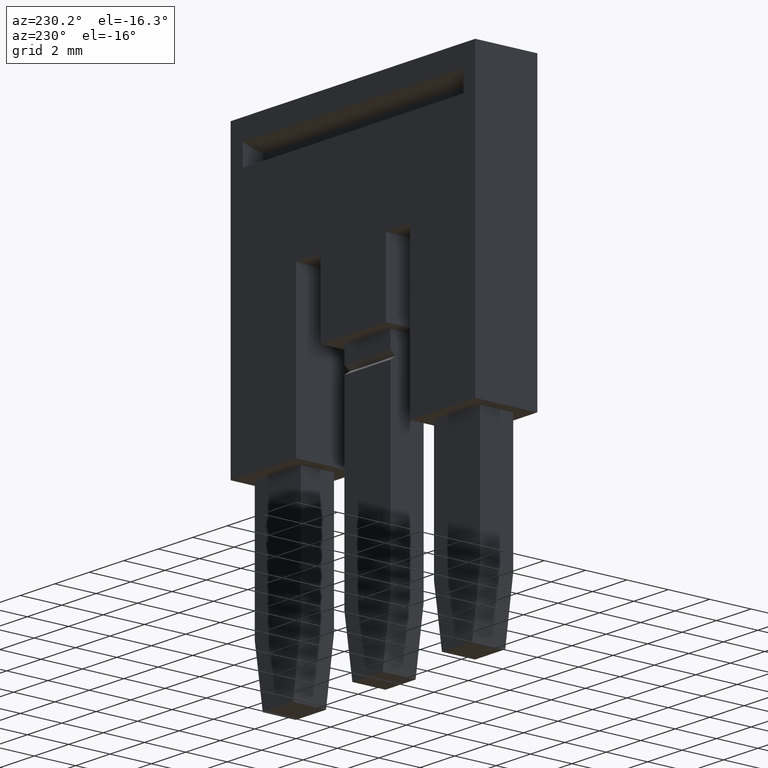
[diagram: clean part render]
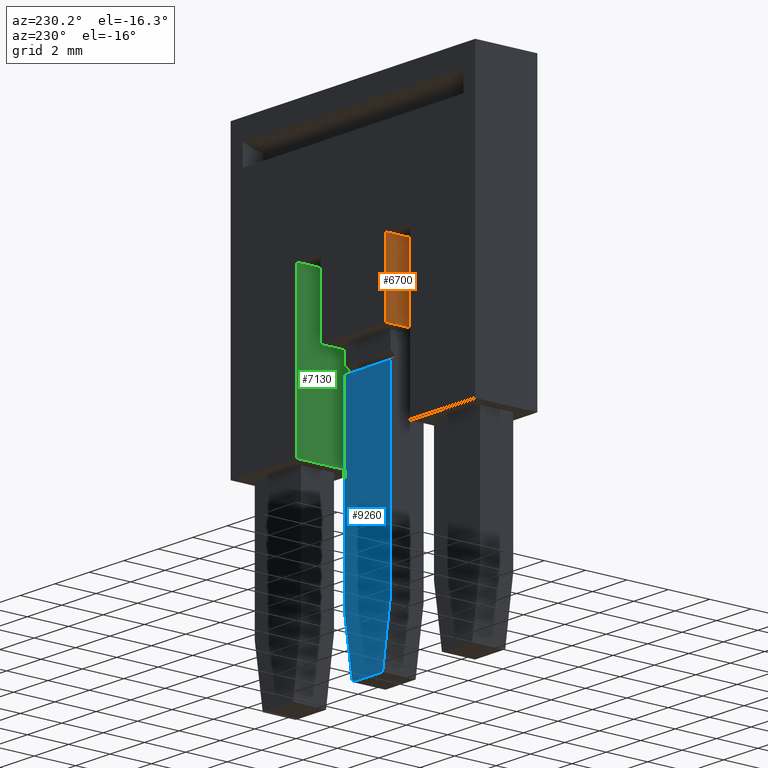
[diagram: same view with three faces highlighted in distinct colors, each labeled with its STEP entity id]
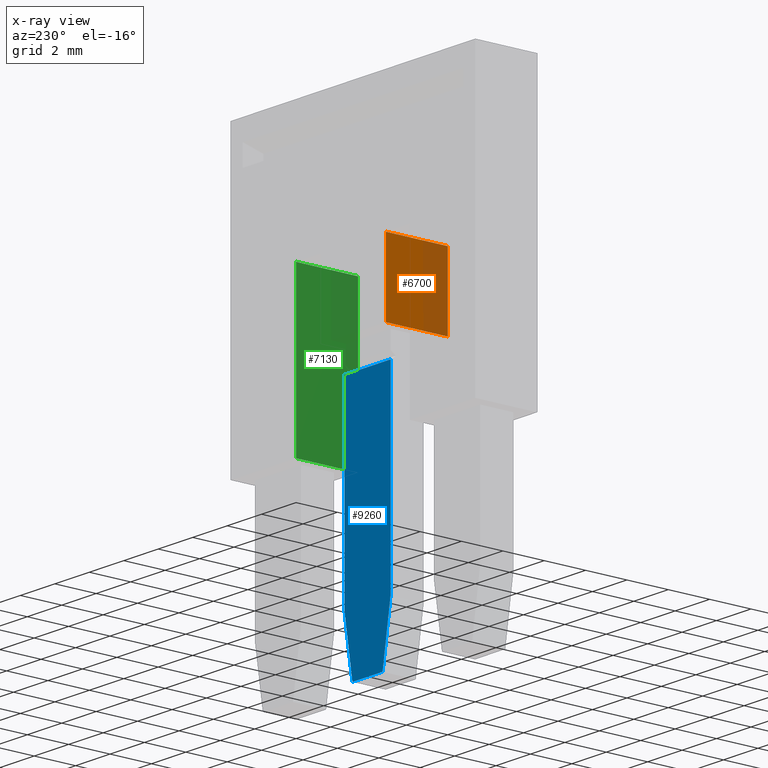
[diagram: x-ray of the same camera — body ghosted, the three highlighted faces saturated]
A machine part, auxiliary view with three faces highlighted in distinct colors.
The next image is the same camera in x-ray (body ghosted, the three faces saturated) — at least one of them is partly hidden behind the body in this view.
Their STEP definitions:

[orange] entity #6700 — the highlighted planar face has unit normal (-1, 0, 0).
#940=CARTESIAN_POINT('',(2.60716722168536,-15.1750000000004,
53.1599999999988));
#950=VERTEX_POINT('',#940);
#980=CARTESIAN_POINT('',(2.60716722168536,-12.005123999997,
53.1599999999988));
#990=DIRECTION('',(0.,-1.,0.));
#1000=VECTOR('',#990,1.);
#1010=LINE('',#980,#1000);
#1020=CARTESIAN_POINT('',(2.60716722168536,-18.6749999999975,
53.1599999999988));
#1030=VERTEX_POINT('',#1020);
#1040=EDGE_CURVE('',#950,#1030,#1010,.T.);
#1890=CARTESIAN_POINT('',(5.60716722168537,-15.1750000000004,
53.1599999999988));
#1900=VERTEX_POINT('',#1890);
#2710=CARTESIAN_POINT('',(5.60716722168537,-18.6749999999975,
53.1599999999988));
#2720=VERTEX_POINT('',#2710);
#2750=CARTESIAN_POINT('',(5.60716722168536,-12.005123999997,
53.1599999999988));
#2760=DIRECTION('',(0.,-1.,0.));
#2770=VECTOR('',#2760,1.);
#2780=LINE('',#2750,#2770);
#2790=EDGE_CURVE('',#1900,#2720,#2780,.T.);
#6310=CARTESIAN_POINT('',(5.60716722168535,-15.1750000000004,
53.1599999999988));
#6320=DIRECTION('',(1.,0.,0.));
#6330=VECTOR('',#6320,1.);
#6340=LINE('',#6310,#6330);
#6350=EDGE_CURVE('',#950,#1900,#6340,.T.);
#6540=CARTESIAN_POINT('',(5.60716722168536,-14.8749999999974,
53.1599999999988));
#6550=DIRECTION('',(0.,-0.,1.));
#6560=DIRECTION('',(0.,1.,0.));
#6570=AXIS2_PLACEMENT_3D('',#6540,#6550,#6560);
#6580=PLANE('',#6570);
#6590=CARTESIAN_POINT('',(5.60716722168535,-18.6749999999975,
53.1599999999988));
#6600=DIRECTION('',(1.,3.56818802108882E-17,0.));
#6610=VECTOR('',#6600,1.);
#6620=LINE('',#6590,#6610);
#6630=EDGE_CURVE('',#1030,#2720,#6620,.T.);
#6640=ORIENTED_EDGE('',*,*,#6630,.T.);
#6650=ORIENTED_EDGE('',*,*,#1040,.T.);
#6660=ORIENTED_EDGE('',*,*,#6350,.F.);
#6670=ORIENTED_EDGE('',*,*,#2790,.F.);
#6680=EDGE_LOOP('',(#6670,#6660,#6650,#6640));
#6690=FACE_OUTER_BOUND('',#6680,.T.);
#6700=ADVANCED_FACE('',(#6690),#6580,.T.);

[blue] entity #9260 — the highlighted planar face has unit normal (0, 1, 0).
#8470=CARTESIAN_POINT('',(3.30716722168535,-12.005123999997,
55.3404020788988));
#8480=DIRECTION('',(0.,-0.987219178105449,-0.159368423411924));
#8490=VECTOR('',#8480,1.);
#8500=LINE('',#8470,#8490);
#8510=CARTESIAN_POINT('',(3.30716722168535,-28.9807420624721,
52.6000000009616));
#8520=VERTEX_POINT('',#8510);
#8530=CARTESIAN_POINT('',(3.30716722168535,-31.8500000022929,
52.1368109499659));
#8540=VERTEX_POINT('',#8530);
#8550=EDGE_CURVE('',#8520,#8540,#8500,.T.);
#8800=CARTESIAN_POINT('',(3.30716722168535,-27.3497789998231,
51.379551985078));
#8810=DIRECTION('',(-1.,0.,0.));
#8820=DIRECTION('',(0.,-1.,0.));
#8830=AXIS2_PLACEMENT_3D('',#8800,#8810,#8820);
#8840=PLANE('',#8830);
#8850=CARTESIAN_POINT('',(3.30716722168535,-19.861070543835,47.074984));
#8860=DIRECTION('',(0.,8.1405407594792E-17,1.));
#8870=VECTOR('',#8860,1.);
#8880=LINE('',#8850,#8870);
#8890=CARTESIAN_POINT('',(3.30716722168535,-19.861070543835,
49.9200000009627));
#8900=VERTEX_POINT('',#8890);
#8910=CARTESIAN_POINT('',(3.30716722168535,-19.861070543835,
52.6000000009616));
#8920=VERTEX_POINT('',#8910);
#8930=EDGE_CURVE('',#8900,#8920,#8880,.T.);
#8940=ORIENTED_EDGE('',*,*,#8930,.F.);
#8950=CARTESIAN_POINT('',(3.30716722168535,-12.305124,52.6000000009616))
;
#8960=DIRECTION('',(0.,1.,2.3789721411555E-16));
#8970=VECTOR('',#8960,1.);
#8980=LINE('',#8950,#8970);
#8990=EDGE_CURVE('',#8520,#8920,#8980,.T.);
#9000=ORIENTED_EDGE('',*,*,#8990,.T.);
#9010=ORIENTED_EDGE('',*,*,#8550,.F.);
#9020=CARTESIAN_POINT('',(3.30716722168535,-31.8500000022922,47.074984))
;
#9030=DIRECTION('',(0.,-1.44960956186225E-13,1.));
#9040=VECTOR('',#9030,1.);
#9050=LINE('',#9020,#9040);
#9060=CARTESIAN_POINT('',(3.30716722168535,-31.8500000022926,
50.3831890519583));
#9070=VERTEX_POINT('',#9060);
#9080=EDGE_CURVE('',#9070,#8540,#9050,.T.);
#9090=ORIENTED_EDGE('',*,*,#9080,.T.);
#9100=CARTESIAN_POINT('',(3.30716722168535,-12.005123999997,
47.1795979230254));
#9110=DIRECTION('',(0.,0.987219178105449,-0.159368423411924));
#9120=VECTOR('',#9110,1.);
#9130=LINE('',#9100,#9120);
#9140=CARTESIAN_POINT('',(3.30716722168535,-28.9807420624724,
49.9200000009627));
#9150=VERTEX_POINT('',#9140);
#9160=EDGE_CURVE('',#9070,#9150,#9130,.T.);
#9170=ORIENTED_EDGE('',*,*,#9160,.F.);
#9180=CARTESIAN_POINT('',(3.30716722168535,-12.005123999997,
49.9200000009627));
#9190=DIRECTION('',(0.,-1.,-9.11930314421364E-17));
#9200=VECTOR('',#9190,1.);
#9210=LINE('',#9180,#9200);
#9220=EDGE_CURVE('',#8900,#9150,#9210,.T.);
#9230=ORIENTED_EDGE('',*,*,#9220,.T.);
#9240=EDGE_LOOP('',(#9230,#9170,#9090,#9010,#9000,#8940));
#9250=FACE_OUTER_BOUND('',#9240,.T.);
#9260=ADVANCED_FACE('',(#9250),#8840,.T.);

[green] entity #7130 — the highlighted planar face has unit normal (-1, 0, 0).
#460=CARTESIAN_POINT('',(2.60716722168536,-22.774999999999,
47.9599999999988));
#470=VERTEX_POINT('',#460);
#1260=CARTESIAN_POINT('',(2.60716722168536,-15.1750000000004,
47.9599999999988));
#1270=VERTEX_POINT('',#1260);
#1300=CARTESIAN_POINT('',(2.60716722168536,-12.005123999997,
47.9599999999988));
#1310=DIRECTION('',(0.,1.,0.));
#1320=VECTOR('',#1310,1.);
#1330=LINE('',#1300,#1320);
#1340=EDGE_CURVE('',#470,#1270,#1330,.T.);
#2390=CARTESIAN_POINT('',(5.60716722168537,-22.774999999999,
47.9599999999988));
#2400=VERTEX_POINT('',#2390);
#2430=CARTESIAN_POINT('',(5.60716722168536,-12.005123999997,
47.9599999999988));
#2440=DIRECTION('',(0.,1.,0.));
#2450=VECTOR('',#2440,1.);
#2460=LINE('',#2430,#2450);
#2470=CARTESIAN_POINT('',(5.60716722168537,-15.1750000000004,
47.9599999999988));
#2480=VERTEX_POINT('',#2470);
#2490=EDGE_CURVE('',#2400,#2480,#2460,.T.);
#3610=CARTESIAN_POINT('',(5.60716722168535,-22.774999999999,
47.9599999999988));
#3620=DIRECTION('',(1.,3.56818802108822E-17,0.));
#3630=VECTOR('',#3620,1.);
#3640=LINE('',#3610,#3630);
#3650=EDGE_CURVE('',#470,#2400,#3640,.T.);
#6790=CARTESIAN_POINT('',(5.60716722168535,-15.1750000000004,
47.9599999999988));
#6800=DIRECTION('',(1.,0.,0.));
#6810=VECTOR('',#6800,1.);
#6820=LINE('',#6790,#6810);
#6830=EDGE_CURVE('',#1270,#2480,#6820,.T.);
#7020=CARTESIAN_POINT('',(5.60716722168536,-14.8749999999974,
47.9599999999988));
#7030=DIRECTION('',(0.,-0.,1.));
#7040=DIRECTION('',(0.,1.,0.));
#7050=AXIS2_PLACEMENT_3D('',#7020,#7030,#7040);
#7060=PLANE('',#7050);
#7070=ORIENTED_EDGE('',*,*,#3650,.T.);
#7080=ORIENTED_EDGE('',*,*,#1340,.F.);
#7090=ORIENTED_EDGE('',*,*,#6830,.F.);
#7100=ORIENTED_EDGE('',*,*,#2490,.T.);
#7110=EDGE_LOOP('',(#7100,#7090,#7080,#7070));
#7120=FACE_OUTER_BOUND('',#7110,.T.);
#7130=ADVANCED_FACE('',(#7120),#7060,.T.);